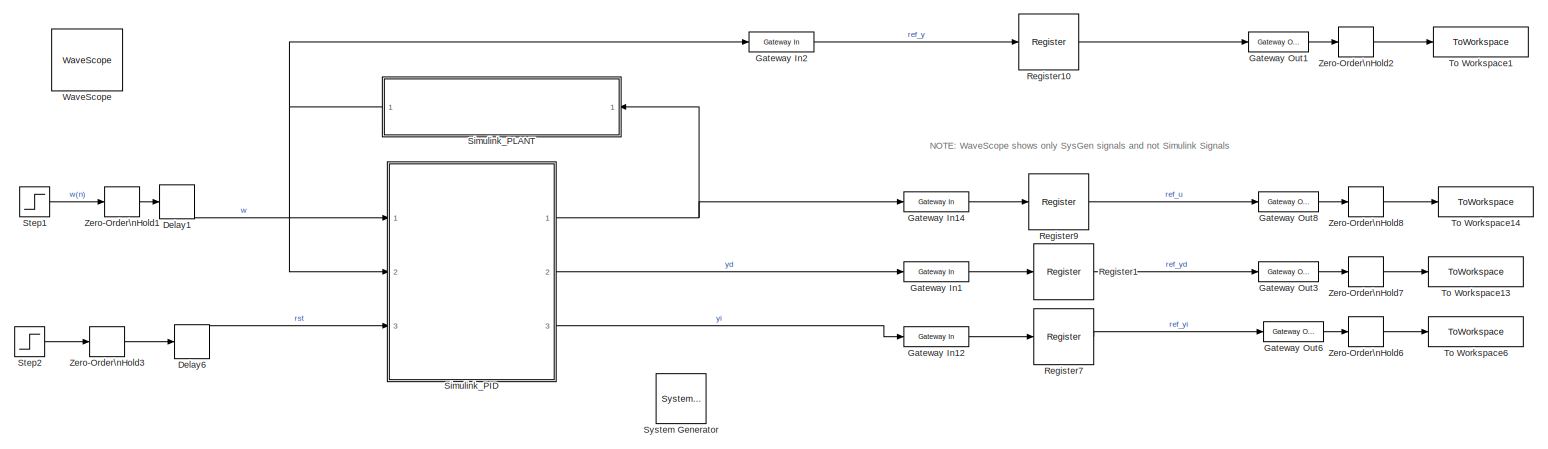
[diagram: root canvas - part 1/4, full width, top band]
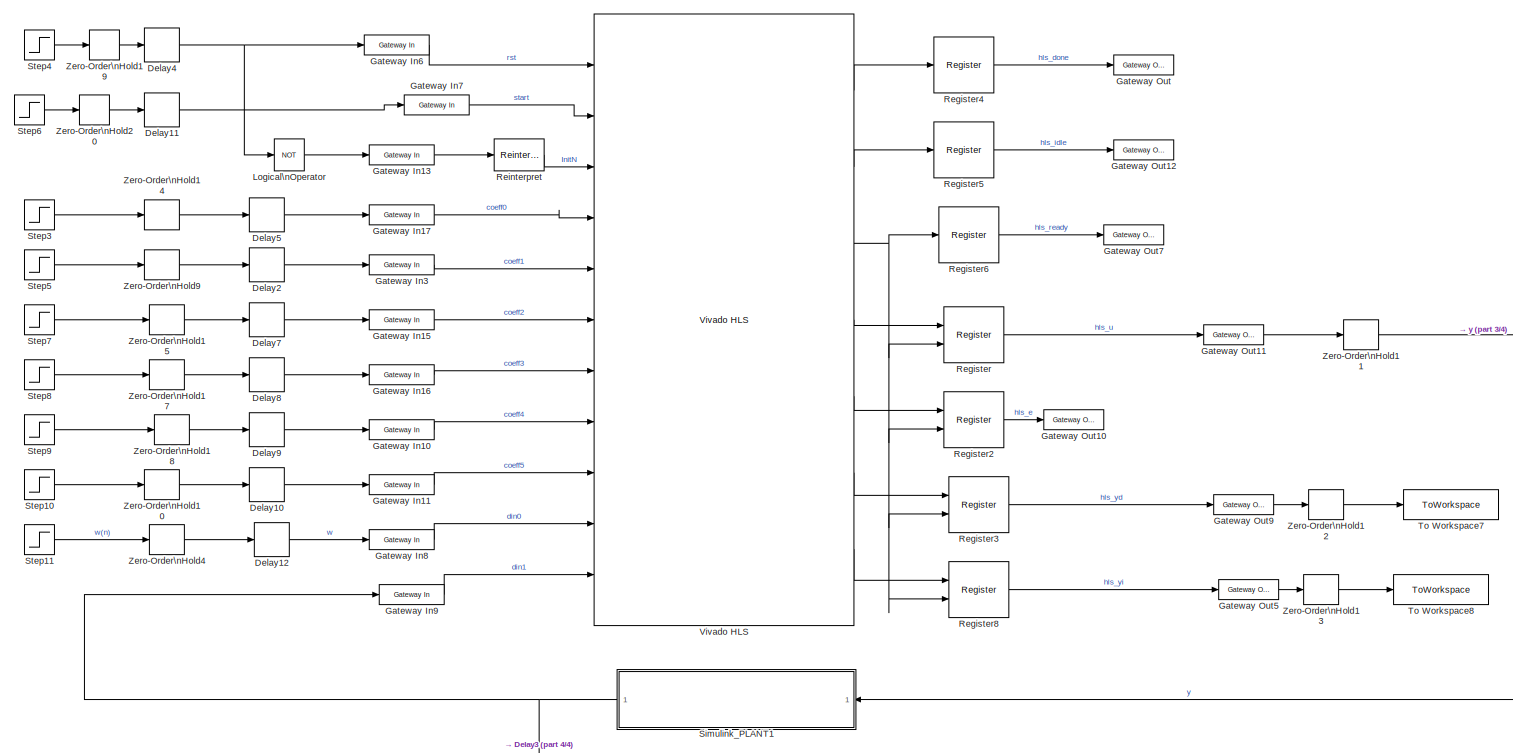
[diagram: root canvas - part 2/4, full width, middle band]
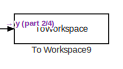
[diagram: root canvas - part 3/4, middle right region]
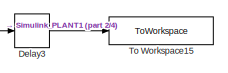
[diagram: root canvas - part 4/4, bottom right region]
MODEL sg_ClosedLoop_PID_float
KIND model
CONFIG StopFcn = sg_ClosedLoop_PID_float_StopFcn
BLOCK [Reference]  System Generator  REF=xbsIndex_r4/ System Generator
  AttributesFormatString = System\\nGenerator
  Impl_file = ISE Defaults
  Ports = []
  SID = 184
  SourceBlock = xbsIndex_r4/ System Generator
  SourceType = Xilinx System Generator Block
  Synth_file = XST Defaults
  Tag = genX
  UserData = DataTag0
  UserDataPersistent = on
  block_type = sysgen
  clock_wrapper = Clock Enables
  core_generation = According to Block Masks
  dbl_ovrd = According to Block Masks
  dcm_input_clock_period = 10
  deprecated_control = off
  directory = ./netlist_top_PID
  eval_field = 0
  has_advanced_control = 0
  incr_netlist = off
  infoedit = System Generator
  package = clg400
  part = xc7z020
  proj_type = Project Navigator
  run_coregen = off
  sg_icon_stat = 50,50,0,0,token,white,0,58c5b5770fe5f7c311f53dbc6e73f0f6,right,,[ ],[ ]
  sg_mask_display = fprintf('','COMMENT: begin icon graphics');\npatch([0 50 50 0 0 ],[0 0 50 50 0 ],[1 1 1 ]);\npatch([1.6375 16.81 27.31 37.81 48.31 27.31 12.1375 1.6375 ],[36.655 36.655 47.155 36.655 47.155 47.155 47.155 36.655 ],[0.933333 0.203922 0.141176 ]);\npatch([12.1375 27.31 16.81 1.6375 12.1375 ],[26.155 26.155 36.655 36.655 26.155 ],[0.698039 0.0313725 0.219608 ]);\npatch([1.6375 16.81 27.31 12.1375 1.63...<+335ch>
  sggui_pos = 326,241,464,470
  simulink_period = 1
  speed = -1
  synthesis_tool = XST
  sysclk_period = 10
  testbench = off
  trim_vbits = Everywhere in SubSystem
  xilinxfamily = zynq
BLOCK [Delay] Delay1
  DelayLength = 11
  ExternalReset = None
  InputPortMap = u0
  Ports = [1, 1]
  SID = 93
BLOCK [Delay] Delay10
  DelayLength = 11
  ExternalReset = None
  InputPortMap = u0
  Ports = [1, 1]
  SID = 113
BLOCK [Delay] Delay11
  DelayLength = 11
  ExternalReset = None
  InputPortMap = u0
  Ports = [1, 1]
  SID = 114
BLOCK [Delay] Delay12
  DelayLength = 11
  ExternalReset = None
  InputPortMap = u0
  Ports = [1, 1]
  SID = 181
BLOCK [Delay] Delay2
  DelayLength = 11
  ExternalReset = None
  InputPortMap = u0
  Ports = [1, 1]
  SID = 112
BLOCK [Delay] Delay3
  DelayLength = 1
  ExternalReset = None
  InputPortMap = u0
  Ports = [1, 1]
  SID = 222
BLOCK [Delay] Delay4
  DelayLength = 1
  ExternalReset = None
  InputPortMap = u0
  Ports = [1, 1]
  SID = 115
BLOCK [Delay] Delay5
  DelayLength = 11
  ExternalReset = None
  InputPortMap = u0
  Ports = [1, 1]
  SID = 116
BLOCK [Delay] Delay6
  DelayLength = 10
  ExternalReset = None
  InputPortMap = u0
  Ports = [1, 1]
  SID = 98
BLOCK [Delay] Delay7
  DelayLength = 11
  ExternalReset = None
  InputPortMap = u0
  Ports = [1, 1]
  SID = 117
BLOCK [Delay] Delay8
  DelayLength = 11
  ExternalReset = None
  InputPortMap = u0
  Ports = [1, 1]
  SID = 118
BLOCK [Delay] Delay9
  DelayLength = 11
  ExternalReset = None
  InputPortMap = u0
  Ports = [1, 1]
  SID = 119
BLOCK [Reference] Gateway In1  REF=xbsIndex_r4/Gateway In
  ADCChannel = '1'
  LOCs = {}
  Ports = [1, 1]
  SID = 185
  SourceBlock = xbsIndex_r4/Gateway In
  SourceType = Xilinx Gateway In Block
  UseAsADC = off
  arith_type = Floating-point
  bin_pt = 25-10
  block_type = gatewayin
  dbl_ovrd = off
  exp_width = 8
  frac_width = 24
  gui_display_data_type = Floating-point
  has_advanced_control = 0
  hdl_port = on
  infoedit = Gateway in block.  Converts inputs of type Simulink integer, single, double and fixed-point to  Xilinx fixed-point or floating-point data type.<br><br>Hardware notes:  In hardware these blocks become top level input ports.  <repeated x15 — deduplicated; at blocks: Gateway In1, Gateway In10, Gateway In11, Gateway In12, Gateway In13, Gateway In14, Gateway In15, Gateway In16, Gateway In17, Gateway In2, Gateway In3, Gateway In6, Gateway In7, Gateway In8, Gateway In9>
  inherit_from_input = off
  locs_specified = off
  n_bits = 25
  overflow = Saturate
  period = II
  preci_type = Single
  quantization = Round  (unbiased: +/- Inf)
  sg_icon_stat = 65,20,1,1,white,yellow,1,00d3666e,right,,[ ],[ ]
  sg_mask_display = fprintf('','COMMENT: begin icon graphics');\npatch([0 65 65 0 0 ],[0 0 20 20 0 ],[0.95 0.93 0.65 ]);\nplot([0 65 65 0 0 ],[0 0 20 20 0 ]);\npatch([27.55 30.44 32.44 34.44 36.44 32.44 29.55 27.55 ],[12.22 12.22 14.22 12.22 14.22 14.22 14.22 12.22 ],[1 1 1 ]);\npatch([29.55 32.44 30.44 27.55 29.55 ],[10.22 10.22 12.22 12.22 10.22 ],[0.985 0.979 0.895 ]);\npatch([27.55 30.44 32.44 29.55 27.55 ],[8.22...<+396ch>  <repeated x15 — deduplicated; at blocks: Gateway In1, Gateway In10, Gateway In11, Gateway In12, Gateway In13, Gateway In14, Gateway In15, Gateway In16, Gateway In17, Gateway In2, Gateway In3, Gateway In6, Gateway In7, Gateway In8, Gateway In9>
  sggui_pos = -1,-1,-1,-1
  timing_constraint = None
  xl_area = [0,0,0,0,0,0,0]
  xl_use_area = off
BLOCK [Reference] Gateway In10  REF=xbsIndex_r4/Gateway In
  ADCChannel = '1'
  LOCs = {}
  Ports = [1, 1]
  SID = 120
  SourceBlock = xbsIndex_r4/Gateway In
  SourceType = Xilinx Gateway In Block
  UseAsADC = off
  arith_type = Floating-point
  bin_pt = 25-10
  block_type = gatewayin
  dbl_ovrd = off
  exp_width = 8
  frac_width = 24
  gui_display_data_type = Floating-point
  has_advanced_control = 0
  hdl_port = on
  inherit_from_input = off
  locs_specified = off
  n_bits = 25
  overflow = Saturate
  period = II
  preci_type = Single
  quantization = Round  (unbiased: +/- Inf)
  sg_icon_stat = 65,20,1,1,white,yellow,1,00d3666e,right,,[ ],[ ]
  sggui_pos = -1,-1,-1,-1
  timing_constraint = None
  xl_area = [0,0,0,0,0,0,0]
  xl_use_area = off
BLOCK [Reference] Gateway In11  REF=xbsIndex_r4/Gateway In
  ADCChannel = '1'
  LOCs = {}
  Ports = [1, 1]
  SID = 121
  SourceBlock = xbsIndex_r4/Gateway In
  SourceType = Xilinx Gateway In Block
  UseAsADC = off
  arith_type = Floating-point
  bin_pt = 25-10
  block_type = gatewayin
  dbl_ovrd = off
  exp_width = 8
  frac_width = 24
  gui_display_data_type = Floating-point
  has_advanced_control = 0
  hdl_port = on
  inherit_from_input = off
  locs_specified = off
  n_bits = 25
  overflow = Saturate
  period = II
  preci_type = Single
  quantization = Round  (unbiased: +/- Inf)
  sg_icon_stat = 65,20,1,1,white,yellow,1,00d3666e,right,,[ ],[ ]
  sggui_pos = -1,-1,-1,-1
  timing_constraint = None
  xl_area = [0,0,0,0,0,0,0]
  xl_use_area = off
BLOCK [Reference] Gateway In12  REF=xbsIndex_r4/Gateway In
  ADCChannel = '1'
  LOCs = {}
  Ports = [1, 1]
  SID = 186
  SourceBlock = xbsIndex_r4/Gateway In
  SourceType = Xilinx Gateway In Block
  UseAsADC = off
  arith_type = Floating-point
  bin_pt = 25-10
  block_type = gatewayin
  dbl_ovrd = off
  exp_width = 8
  frac_width = 24
  gui_display_data_type = Floating-point
  has_advanced_control = 0
  hdl_port = on
  inherit_from_input = off
  locs_specified = off
  n_bits = 25
  overflow = Saturate
  period = II
  preci_type = Single
  quantization = Round  (unbiased: +/- Inf)
  sg_icon_stat = 65,20,1,1,white,yellow,1,00d3666e,right,,[ ],[ ]
  sggui_pos = -1,-1,-1,-1
  timing_constraint = None
  xl_area = [0,0,0,0,0,0,0]
  xl_use_area = off
BLOCK [Reference] Gateway In13  REF=xbsIndex_r4/Gateway In
  ADCChannel = '1'
  LOCs = {}
  Ports = [1, 1]
  SID = 122
  SourceBlock = xbsIndex_r4/Gateway In
  SourceType = Xilinx Gateway In Block
  UseAsADC = off
  arith_type = Boolean
  bin_pt = 25-10
  block_type = gatewayin
  dbl_ovrd = off
  exp_width = 8
  frac_width = 24
  gui_display_data_type = Boolean
  has_advanced_control = 0
  hdl_port = on
  inherit_from_input = off
  locs_specified = off
  n_bits = 25
  overflow = Saturate
  period = II
  preci_type = Single
  quantization = Round  (unbiased: +/- Inf)
  sg_icon_stat = 65,20,1,1,white,yellow,1,00d3666e,right,,[ ],[ ]
  sggui_pos = -1,-1,-1,-1
  timing_constraint = None
  xl_area = [0,0,0,0,0,0,0]
  xl_use_area = off
BLOCK [Reference] Gateway In14  REF=xbsIndex_r4/Gateway In
  ADCChannel = '1'
  LOCs = {}
  Ports = [1, 1]
  SID = 187
  SourceBlock = xbsIndex_r4/Gateway In
  SourceType = Xilinx Gateway In Block
  UseAsADC = off
  arith_type = Floating-point
  bin_pt = 25-10
  block_type = gatewayin
  dbl_ovrd = off
  exp_width = 8
  frac_width = 24
  gui_display_data_type = Floating-point
  has_advanced_control = 0
  hdl_port = on
  inherit_from_input = off
  locs_specified = off
  n_bits = 25
  overflow = Saturate
  period = II
  preci_type = Single
  quantization = Round  (unbiased: +/- Inf)
  sg_icon_stat = 65,20,1,1,white,yellow,1,00d3666e,right,,[ ],[ ]
  sggui_pos = -1,-1,-1,-1
  timing_constraint = None
  xl_area = [0,0,0,0,0,0,0]
  xl_use_area = off
BLOCK [Reference] Gateway In15  REF=xbsIndex_r4/Gateway In
  ADCChannel = '1'
  LOCs = {}
  Ports = [1, 1]
  SID = 123
  SourceBlock = xbsIndex_r4/Gateway In
  SourceType = Xilinx Gateway In Block
  UseAsADC = off
  arith_type = Floating-point
  bin_pt = 25-10
  block_type = gatewayin
  dbl_ovrd = off
  exp_width = 8
  frac_width = 24
  gui_display_data_type = Floating-point
  has_advanced_control = 0
  hdl_port = on
  inherit_from_input = off
  locs_specified = off
  n_bits = 25
  overflow = Saturate
  period = II
  preci_type = Single
  quantization = Round  (unbiased: +/- Inf)
  sg_icon_stat = 65,20,1,1,white,yellow,1,00d3666e,right,,[ ],[ ]
  sggui_pos = -1,-1,-1,-1
  timing_constraint = None
  xl_area = [0,0,0,0,0,0,0]
  xl_use_area = off
BLOCK [Reference] Gateway In16  REF=xbsIndex_r4/Gateway In
  ADCChannel = '1'
  LOCs = {}
  Ports = [1, 1]
  SID = 124
  SourceBlock = xbsIndex_r4/Gateway In
  SourceType = Xilinx Gateway In Block
  UseAsADC = off
  arith_type = Floating-point
  bin_pt = 25-10
  block_type = gatewayin
  dbl_ovrd = off
  exp_width = 8
  frac_width = 24
  gui_display_data_type = Floating-point
  has_advanced_control = 0
  hdl_port = on
  inherit_from_input = off
  locs_specified = off
  n_bits = 25
  overflow = Saturate
  period = II
  preci_type = Single
  quantization = Round  (unbiased: +/- Inf)
  sg_icon_stat = 65,20,1,1,white,yellow,1,00d3666e,right,,[ ],[ ]
  sggui_pos = -1,-1,-1,-1
  timing_constraint = None
  xl_area = [0,0,0,0,0,0,0]
  xl_use_area = off
BLOCK [Reference] Gateway In17  REF=xbsIndex_r4/Gateway In
  ADCChannel = '1'
  LOCs = {}
  Ports = [1, 1]
  SID = 125
  SourceBlock = xbsIndex_r4/Gateway In
  SourceType = Xilinx Gateway In Block
  UseAsADC = off
  arith_type = Floating-point
  bin_pt = 25-10
  block_type = gatewayin
  dbl_ovrd = off
  exp_width = 8
  frac_width = 24
  gui_display_data_type = Floating-point
  has_advanced_control = 0
  hdl_port = on
  inherit_from_input = off
  locs_specified = off
  n_bits = 25
  overflow = Saturate
  period = II
  preci_type = Single
  quantization = Round  (unbiased: +/- Inf)
  sg_icon_stat = 65,20,1,1,white,yellow,1,00d3666e,right,,[ ],[ ]
  sggui_pos = -1,-1,-1,-1
  timing_constraint = None
  xl_area = [0,0,0,0,0,0,0]
  xl_use_area = off
BLOCK [Reference] Gateway In2  REF=xbsIndex_r4/Gateway In
  ADCChannel = '1'
  LOCs = {}
  Ports = [1, 1]
  SID = 217
  SourceBlock = xbsIndex_r4/Gateway In
  SourceType = Xilinx Gateway In Block
  UseAsADC = off
  arith_type = Floating-point
  bin_pt = 25-10
  block_type = gatewayin
  dbl_ovrd = off
  exp_width = 8
  frac_width = 24
  gui_display_data_type = Floating-point
  has_advanced_control = 0
  hdl_port = on
  inherit_from_input = off
  locs_specified = off
  n_bits = 25
  overflow = Saturate
  period = II
  preci_type = Single
  quantization = Round  (unbiased: +/- Inf)
  sg_icon_stat = 65,20,1,1,white,yellow,1,00d3666e,right,,[ ],[ ]
  sggui_pos = -1,-1,-1,-1
  timing_constraint = None
  xl_area = [0,0,0,0,0,0,0]
  xl_use_area = off
BLOCK [Reference] Gateway In3  REF=xbsIndex_r4/Gateway In
  ADCChannel = '1'
  LOCs = {}
  Ports = [1, 1]
  SID = 126
  SourceBlock = xbsIndex_r4/Gateway In
  SourceType = Xilinx Gateway In Block
  UseAsADC = off
  arith_type = Floating-point
  bin_pt = 25-10
  block_type = gatewayin
  dbl_ovrd = off
  exp_width = 8
  frac_width = 24
  gui_display_data_type = Floating-point
  has_advanced_control = 0
  hdl_port = on
  inherit_from_input = off
  locs_specified = off
  n_bits = 25
  overflow = Saturate
  period = II
  preci_type = Single
  quantization = Round  (unbiased: +/- Inf)
  sg_icon_stat = 65,20,1,1,white,yellow,1,00d3666e,right,,[ ],[ ]
  sggui_pos = -1,-1,-1,-1
  timing_constraint = None
  xl_area = [0,0,0,0,0,0,0]
  xl_use_area = off
BLOCK [Reference] Gateway In6  REF=xbsIndex_r4/Gateway In
  ADCChannel = '1'
  LOCs = {}
  Ports = [1, 1]
  SID = 127
  SourceBlock = xbsIndex_r4/Gateway In
  SourceType = Xilinx Gateway In Block
  UseAsADC = off
  arith_type = Boolean
  bin_pt = 25-10
  block_type = gatewayin
  dbl_ovrd = off
  exp_width = 8
  frac_width = 24
  gui_display_data_type = Boolean
  has_advanced_control = 0
  hdl_port = on
  inherit_from_input = off
  locs_specified = off
  n_bits = 25
  overflow = Saturate
  period = II
  preci_type = Single
  quantization = Round  (unbiased: +/- Inf)
  sg_icon_stat = 65,20,1,1,white,yellow,1,00d3666e,right,,[ ],[ ]
  sggui_pos = -1,-1,-1,-1
  timing_constraint = None
  xl_area = [0,0,0,0,0,0,0]
  xl_use_area = off
BLOCK [Reference] Gateway In7  REF=xbsIndex_r4/Gateway In
  ADCChannel = '1'
  LOCs = {}
  Ports = [1, 1]
  SID = 128
  SourceBlock = xbsIndex_r4/Gateway In
  SourceType = Xilinx Gateway In Block
  UseAsADC = off
  arith_type = Boolean
  bin_pt = 25-10
  block_type = gatewayin
  dbl_ovrd = off
  exp_width = 8
  frac_width = 24
  gui_display_data_type = Boolean
  has_advanced_control = 0
  hdl_port = on
  inherit_from_input = off
  locs_specified = off
  n_bits = 25
  overflow = Saturate
  period = II
  preci_type = Single
  quantization = Round  (unbiased: +/- Inf)
  sg_icon_stat = 65,20,1,1,white,yellow,1,00d3666e,right,,[ ],[ ]
  sggui_pos = -1,-1,-1,-1
  timing_constraint = None
  xl_area = [0,0,0,0,0,0,0]
  xl_use_area = off
BLOCK [Reference] Gateway In8  REF=xbsIndex_r4/Gateway In
  ADCChannel = '1'
  LOCs = {}
  Ports = [1, 1]
  SID = 129
  SourceBlock = xbsIndex_r4/Gateway In
  SourceType = Xilinx Gateway In Block
  UseAsADC = off
  arith_type = Floating-point
  bin_pt = 25-10
  block_type = gatewayin
  dbl_ovrd = off
  exp_width = 8
  frac_width = 24
  gui_display_data_type = Floating-point
  has_advanced_control = 0
  hdl_port = on
  inherit_from_input = off
  locs_specified = off
  n_bits = 25
  overflow = Saturate
  period = II
  preci_type = Single
  quantization = Round  (unbiased: +/- Inf)
  sg_icon_stat = 65,20,1,1,white,yellow,1,00d3666e,right,,[ ],[ ]
  sggui_pos = -1,-1,-1,-1
  timing_constraint = None
  xl_area = [0,0,0,0,0,0,0]
  xl_use_area = off
BLOCK [Reference] Gateway In9  REF=xbsIndex_r4/Gateway In
  ADCChannel = '1'
  LOCs = {}
  Ports = [1, 1]
  SID = 130
  SourceBlock = xbsIndex_r4/Gateway In
  SourceType = Xilinx Gateway In Block
  UseAsADC = off
  arith_type = Floating-point
  bin_pt = 25-10
  block_type = gatewayin
  dbl_ovrd = off
  exp_width = 8
  frac_width = 24
  gui_display_data_type = Floating-point
  has_advanced_control = 0
  hdl_port = on
  inherit_from_input = off
  locs_specified = off
  n_bits = 25
  overflow = Saturate
  period = II
  preci_type = Single
  quantization = Round  (unbiased: +/- Inf)
  sg_icon_stat = 65,20,1,1,white,yellow,1,00d3666e,right,,[ ],[ ]
  sggui_pos = 999,154,348,604
  timing_constraint = None
  xl_area = [0,0,0,0,0,0,0]
  xl_use_area = off
BLOCK [Reference] Gateway Out  REF=xbsIndex_r4/Gateway Out
  DACChannel = '1'
  LOCs = {}
  Ports = [1, 1]
  SID = 131
  SourceBlock = xbsIndex_r4/Gateway Out
  SourceType = Xilinx Gateway Out Block
  UseAsDAC = off
  block_type = gatewayout
  has_advanced_control = 0
  hdl_port = off
  infoedit = Gateway out block.  Converts Xilinx fixed-point or floating-point type inputs into ouputs of type Simulink integer, single, double, or fixed-point.<br><br>Hardware notes:  In hardware these blocks become top level output ports or are discarded, depending on how they are configured.  <repeated x11 — deduplicated; at blocks: Gateway Out, Gateway Out1, Gateway Out10, Gateway Out11, Gateway Out12, Gateway Out3, Gateway Out5, Gateway Out6, Gateway Out7, Gateway Out8, Gateway Out9>
  inherit_from_input = off
  locs_specified = off
  sg_icon_stat = 60,20,1,1,white,grey,1,632ec840,right,,[ ],[ ]
  sg_mask_display = fprintf('','COMMENT: begin icon graphics');\npatch([0 60 60 0 0 ],[0 0 20 20 0 ],[0.88 0.88 0.88 ]);\nplot([0 60 60 0 0 ],[0 0 20 20 0 ]);\npatch([25.55 28.44 30.44 32.44 34.44 30.44 27.55 25.55 ],[12.22 12.22 14.22 12.22 14.22 14.22 14.22 12.22 ],[1 1 1 ]);\npatch([27.55 30.44 28.44 25.55 27.55 ],[10.22 10.22 12.22 12.22 10.22 ],[0.964 0.964 0.964 ]);\npatch([25.55 28.44 30.44 27.55 25.55 ],[8.22...<+393ch>  <repeated x9 — deduplicated; at blocks: Gateway Out, Gateway Out1, Gateway Out10, Gateway Out12, Gateway Out3, Gateway Out5, Gateway Out6, Gateway Out8, Gateway Out9>
  sggui_pos = -1,-1,-1,-1
  timing_constraint = None
  xl_area = [0,0,0,0,0,0,0]
  xl_use_area = off
BLOCK [Reference] Gateway Out1  REF=xbsIndex_r4/Gateway Out
  DACChannel = '1'
  LOCs = {}
  Ports = [1, 1]
  SID = 218
  SourceBlock = xbsIndex_r4/Gateway Out
  SourceType = Xilinx Gateway Out Block
  UseAsDAC = off
  block_type = gatewayout
  has_advanced_control = 0
  hdl_port = off
  inherit_from_input = off
  locs_specified = off
  sg_icon_stat = 60,20,1,1,white,grey,1,632ec840,right,,[ ],[ ]
  sggui_pos = -1,-1,-1,-1
  timing_constraint = None
  xl_area = [0,0,0,0,0,0,0]
  xl_use_area = off
BLOCK [Reference] Gateway Out10  REF=xbsIndex_r4/Gateway Out
  DACChannel = '1'
  LOCs = {}
  Ports = [1, 1]
  SID = 132
  SourceBlock = xbsIndex_r4/Gateway Out
  SourceType = Xilinx Gateway Out Block
  UseAsDAC = off
  block_type = gatewayout
  has_advanced_control = 0
  hdl_port = off
  inherit_from_input = off
  locs_specified = off
  sg_icon_stat = 60,20,1,1,white,grey,1,632ec840,right,,[ ],[ ]
  sggui_pos = -1,-1,-1,-1
  timing_constraint = None
  xl_area = [0,0,0,0,0,0,0]
  xl_use_area = off
BLOCK [Reference] Gateway Out11  REF=xbsIndex_r4/Gateway Out
  DACChannel = '1'
  LOCs = {}
  Ports = [1, 1]
  SID = 133
  SourceBlock = xbsIndex_r4/Gateway Out
  SourceType = Xilinx Gateway Out Block
  UseAsDAC = off
  block_type = gatewayout
  has_advanced_control = 0
  hdl_port = on
  inherit_from_input = off
  locs_specified = off
  sg_icon_stat = 60,20,1,1,white,yellow,1,cc31b7ac,right,,[ ],[ ]
  sg_mask_display = fprintf('','COMMENT: begin icon graphics');\npatch([0 60 60 0 0 ],[0 0 20 20 0 ],[0.95 0.93 0.65 ]);\nplot([0 60 60 0 0 ],[0 0 20 20 0 ]);\npatch([25.55 28.44 30.44 32.44 34.44 30.44 27.55 25.55 ],[12.22 12.22 14.22 12.22 14.22 14.22 14.22 12.22 ],[1 1 1 ]);\npatch([27.55 30.44 28.44 25.55 27.55 ],[10.22 10.22 12.22 12.22 10.22 ],[0.985 0.979 0.895 ]);\npatch([25.55 28.44 30.44 27.55 25.55 ],[8.22...<+397ch>
  sggui_pos = -1,-1,-1,-1
  timing_constraint = None
  xl_area = [0,0,0,0,0,0,0]
  xl_use_area = off
BLOCK [Reference] Gateway Out12  REF=xbsIndex_r4/Gateway Out
  DACChannel = '1'
  LOCs = {}
  Ports = [1, 1]
  SID = 134
  SourceBlock = xbsIndex_r4/Gateway Out
  SourceType = Xilinx Gateway Out Block
  UseAsDAC = off
  block_type = gatewayout
  has_advanced_control = 0
  hdl_port = off
  inherit_from_input = off
  locs_specified = off
  sg_icon_stat = 60,20,1,1,white,grey,1,632ec840,right,,[ ],[ ]
  sggui_pos = -1,-1,-1,-1
  timing_constraint = None
  xl_area = [0,0,0,0,0,0,0]
  xl_use_area = off
BLOCK [Reference] Gateway Out3  REF=xbsIndex_r4/Gateway Out
  DACChannel = '1'
  LOCs = {}
  Ports = [1, 1]
  SID = 188
  SourceBlock = xbsIndex_r4/Gateway Out
  SourceType = Xilinx Gateway Out Block
  UseAsDAC = off
  block_type = gatewayout
  has_advanced_control = 0
  hdl_port = off
  inherit_from_input = off
  locs_specified = off
  sg_icon_stat = 60,20,1,1,white,grey,1,632ec840,right,,[ ],[ ]
  sggui_pos = -1,-1,-1,-1
  timing_constraint = None
  xl_area = [0,0,0,0,0,0,0]
  xl_use_area = off
BLOCK [Reference] Gateway Out5  REF=xbsIndex_r4/Gateway Out
  DACChannel = '1'
  LOCs = {}
  Ports = [1, 1]
  SID = 138
  SourceBlock = xbsIndex_r4/Gateway Out
  SourceType = Xilinx Gateway Out Block
  UseAsDAC = off
  block_type = gatewayout
  has_advanced_control = 0
  hdl_port = off
  inherit_from_input = off
  locs_specified = off
  sg_icon_stat = 60,20,1,1,white,grey,1,632ec840,right,,[ ],[ ]
  sggui_pos = -1,-1,-1,-1
  timing_constraint = None
  xl_area = [0,0,0,0,0,0,0]
  xl_use_area = off
BLOCK [Reference] Gateway Out6  REF=xbsIndex_r4/Gateway Out
  DACChannel = '1'
  LOCs = {}
  Ports = [1, 1]
  SID = 189
  SourceBlock = xbsIndex_r4/Gateway Out
  SourceType = Xilinx Gateway Out Block
  UseAsDAC = off
  block_type = gatewayout
  has_advanced_control = 0
  hdl_port = off
  inherit_from_input = off
  locs_specified = off
  sg_icon_stat = 60,20,1,1,white,grey,1,632ec840,right,,[ ],[ ]
  sggui_pos = -1,-1,-1,-1
  timing_constraint = None
  xl_area = [0,0,0,0,0,0,0]
  xl_use_area = off
BLOCK [Reference] Gateway Out7  REF=xbsIndex_r4/Gateway Out
  DACChannel = '1'
  LOCs = {}
  Ports = [1, 1]
  SID = 139
  SourceBlock = xbsIndex_r4/Gateway Out
  SourceType = Xilinx Gateway Out Block
  UseAsDAC = off
  block_type = gatewayout
  has_advanced_control = 0
  hdl_port = on
  inherit_from_input = off
  locs_specified = off
  sg_icon_stat = 60,20,1,1,white,yellow,1,cc31b7ac,right,,[ ],[ ]
  sg_mask_display = fprintf('','COMMENT: begin icon graphics');\npatch([0 60 60 0 0 ],[0 0 20 20 0 ],[0.95 0.93 0.65 ]);\nplot([0 60 60 0 0 ],[0 0 20 20 0 ]);\npatch([25.55 28.44 30.44 32.44 34.44 30.44 27.55 25.55 ],[12.22 12.22 14.22 12.22 14.22 14.22 14.22 12.22 ],[1 1 1 ]);\npatch([27.55 30.44 28.44 25.55 27.55 ],[10.22 10.22 12.22 12.22 10.22 ],[0.985 0.979 0.895 ]);\npatch([25.55 28.44 30.44 27.55 25.55 ],[8.22...<+397ch>
  sggui_pos = -1,-1,-1,-1
  timing_constraint = None
  xl_area = [0,0,0,0,0,0,0]
  xl_use_area = off
BLOCK [Reference] Gateway Out8  REF=xbsIndex_r4/Gateway Out
  DACChannel = '1'
  LOCs = {}
  Ports = [1, 1]
  SID = 190
  SourceBlock = xbsIndex_r4/Gateway Out
  SourceType = Xilinx Gateway Out Block
  UseAsDAC = off
  block_type = gatewayout
  has_advanced_control = 0
  hdl_port = off
  inherit_from_input = off
  locs_specified = off
  sg_icon_stat = 60,20,1,1,white,grey,1,632ec840,right,,[ ],[ ]
  sggui_pos = -1,-1,-1,-1
  timing_constraint = None
  xl_area = [0,0,0,0,0,0,0]
  xl_use_area = off
BLOCK [Reference] Gateway Out9  REF=xbsIndex_r4/Gateway Out
  DACChannel = '1'
  LOCs = {}
  Ports = [1, 1]
  SID = 140
  SourceBlock = xbsIndex_r4/Gateway Out
  SourceType = Xilinx Gateway Out Block
  UseAsDAC = off
  block_type = gatewayout
  has_advanced_control = 0
  hdl_port = off
  inherit_from_input = off
  locs_specified = off
  sg_icon_stat = 60,20,1,1,white,grey,1,632ec840,right,,[ ],[ ]
  sggui_pos = -1,-1,-1,-1
  timing_constraint = None
  xl_area = [0,0,0,0,0,0,0]
  xl_use_area = off
BLOCK [Logic] Logical\nOperator
  AllPortsSameDT = off
  Operator = NOT
  OutDataTypeStr = boolean
  Ports = [1, 1]
  SID = 141
BLOCK [Reference] Register  REF=xbsIndex_r4/Register
  Ports = [2, 1]
  SID = 142
  SourceBlock = xbsIndex_r4/Register
  SourceType = Xilinx Register Block
  block_type = register
  dbl_ovrd = off
  en = on
  has_advanced_control = 0
  init = 0
  rst = off
  sg_icon_stat = 60,56,2,1,white,blue,0,6bd0930c,right,,[ ],[ ]
  sg_mask_display = fprintf('','COMMENT: begin icon graphics');\npatch([0 60 60 0 0 ],[0 0 56 56 0 ],[0.77 0.82 0.91 ]);\nplot([0 60 60 0 0 ],[0 0 56 56 0 ]);\npatch([12.2 23.76 31.76 39.76 47.76 31.76 20.2 12.2 ],[36.88 36.88 44.88 36.88 44.88 44.88 44.88 36.88 ],[1 1 1 ]);\npatch([20.2 31.76 23.76 12.2 20.2 ],[28.88 28.88 36.88 36.88 28.88 ],[0.931 0.946 0.973 ]);\npatch([12.2 23.76 31.76 20.2 12.2 ],[20.88 20.88 2...<+447ch>  <repeated x4 — deduplicated; at blocks: Register, Register2, Register3, Register8>
  sggui_pos = -1,-1,-1,-1
  xl_area = [0,0,0,0,0,0,0]
  xl_use_area = off
BLOCK [Reference] Register1  REF=xbsIndex_r4/Register
  Ports = [1, 1]
  SID = 191
  SourceBlock = xbsIndex_r4/Register
  SourceType = Xilinx Register Block
  block_type = register
  dbl_ovrd = off
  en = off
  has_advanced_control = 0
  init = 0
  rst = off
  sg_icon_stat = 60,56,1,1,white,blue,0,c80657c5,right,,[ ],[ ]
  sg_mask_display = fprintf('','COMMENT: begin icon graphics');\npatch([0 60 60 0 0 ],[0 0 56 56 0 ],[0.77 0.82 0.91 ]);\nplot([0 60 60 0 0 ],[0 0 56 56 0 ]);\npatch([12.2 23.76 31.76 39.76 47.76 31.76 20.2 12.2 ],[36.88 36.88 44.88 36.88 44.88 44.88 44.88 36.88 ],[1 1 1 ]);\npatch([20.2 31.76 23.76 12.2 20.2 ],[28.88 28.88 36.88 36.88 28.88 ],[0.931 0.946 0.973 ]);\npatch([12.2 23.76 31.76 20.2 12.2 ],[20.88 20.88 2...<+403ch>  <repeated x7 — deduplicated; at blocks: Register1, Register10, Register4, Register5, Register6, Register7, Register9>
  sggui_pos = -1,-1,-1,-1
  xl_area = [0,0,0,0,0,0,0]
  xl_use_area = off
BLOCK [Reference] Register10  REF=xbsIndex_r4/Register
  Ports = [1, 1]
  SID = 219
  SourceBlock = xbsIndex_r4/Register
  SourceType = Xilinx Register Block
  block_type = register
  dbl_ovrd = off
  en = off
  has_advanced_control = 0
  init = 0
  rst = off
  sg_icon_stat = 60,56,1,1,white,blue,0,c80657c5,right,,[ ],[ ]
  sggui_pos = -1,-1,-1,-1
  xl_area = [0,0,0,0,0,0,0]
  xl_use_area = off
BLOCK [Reference] Register2  REF=xbsIndex_r4/Register
  Ports = [2, 1]
  SID = 143
  SourceBlock = xbsIndex_r4/Register
  SourceType = Xilinx Register Block
  block_type = register
  dbl_ovrd = off
  en = on
  has_advanced_control = 0
  init = 0
  rst = off
  sg_icon_stat = 60,56,2,1,white,blue,0,6bd0930c,right,,[ ],[ ]
  sggui_pos = -1,-1,-1,-1
  xl_area = [0,0,0,0,0,0,0]
  xl_use_area = off
BLOCK [Reference] Register3  REF=xbsIndex_r4/Register
  Ports = [2, 1]
  SID = 144
  SourceBlock = xbsIndex_r4/Register
  SourceType = Xilinx Register Block
  block_type = register
  dbl_ovrd = off
  en = on
  has_advanced_control = 0
  init = 0
  rst = off
  sg_icon_stat = 60,56,2,1,white,blue,0,6bd0930c,right,,[ ],[ ]
  sggui_pos = -1,-1,-1,-1
  xl_area = [0,0,0,0,0,0,0]
  xl_use_area = off
BLOCK [Reference] Register4  REF=xbsIndex_r4/Register
  Ports = [1, 1]
  SID = 145
  SourceBlock = xbsIndex_r4/Register
  SourceType = Xilinx Register Block
  block_type = register
  dbl_ovrd = off
  en = off
  has_advanced_control = 0
  init = 0
  rst = off
  sg_icon_stat = 60,56,1,1,white,blue,0,c80657c5,right,,[ ],[ ]
  sggui_pos = -1,-1,-1,-1
  xl_area = [0,0,0,0,0,0,0]
  xl_use_area = off
BLOCK [Reference] Register5  REF=xbsIndex_r4/Register
  Ports = [1, 1]
  SID = 146
  SourceBlock = xbsIndex_r4/Register
  SourceType = Xilinx Register Block
  block_type = register
  dbl_ovrd = off
  en = off
  has_advanced_control = 0
  init = 0
  rst = off
  sg_icon_stat = 60,56,1,1,white,blue,0,c80657c5,right,,[ ],[ ]
  sggui_pos = -1,-1,-1,-1
  xl_area = [0,0,0,0,0,0,0]
  xl_use_area = off
BLOCK [Reference] Register6  REF=xbsIndex_r4/Register
  Ports = [1, 1]
  SID = 147
  SourceBlock = xbsIndex_r4/Register
  SourceType = Xilinx Register Block
  block_type = register
  dbl_ovrd = off
  en = off
  has_advanced_control = 0
  init = 0
  rst = off
  sg_icon_stat = 60,56,1,1,white,blue,0,c80657c5,right,,[ ],[ ]
  sggui_pos = -1,-1,-1,-1
  xl_area = [0,0,0,0,0,0,0]
  xl_use_area = off
BLOCK [Reference] Register7  REF=xbsIndex_r4/Register
  Ports = [1, 1]
  SID = 192
  SourceBlock = xbsIndex_r4/Register
  SourceType = Xilinx Register Block
  block_type = register
  dbl_ovrd = off
  en = off
  has_advanced_control = 0
  init = 0
  rst = off
  sg_icon_stat = 60,56,1,1,white,blue,0,c80657c5,right,,[ ],[ ]
  sggui_pos = -1,-1,-1,-1
  xl_area = [0,0,0,0,0,0,0]
  xl_use_area = off
BLOCK [Reference] Register8  REF=xbsIndex_r4/Register
  Ports = [2, 1]
  SID = 148
  SourceBlock = xbsIndex_r4/Register
  SourceType = Xilinx Register Block
  block_type = register
  dbl_ovrd = off
  en = on
  has_advanced_control = 0
  init = 0
  rst = off
  sg_icon_stat = 60,56,2,1,white,blue,0,6bd0930c,right,,[ ],[ ]
  sggui_pos = -1,-1,-1,-1
  xl_area = [0,0,0,0,0,0,0]
  xl_use_area = off
BLOCK [Reference] Register9  REF=xbsIndex_r4/Register
  Ports = [1, 1]
  SID = 193
  SourceBlock = xbsIndex_r4/Register
  SourceType = Xilinx Register Block
  block_type = register
  dbl_ovrd = off
  en = off
  has_advanced_control = 0
  init = 0
  rst = off
  sg_icon_stat = 60,56,1,1,white,blue,0,c80657c5,right,,[ ],[ ]
  sggui_pos = -1,-1,-1,-1
  xl_area = [0,0,0,0,0,0,0]
  xl_use_area = off
BLOCK [Reference] Reinterpret  REF=xbsIndex_r4/Reinterpret
  Ports = [1, 1]
  SID = 149
  SourceBlock = xbsIndex_r4/Reinterpret
  SourceType = Xilinx Type Reinterpreter Block
  arith_type = Unsigned
  bin_pt = 0
  block_type = reinterpret
  force_arith_type = on
  force_bin_pt = on
  has_advanced_control = 0
  infoedit = Changes signal type without altering the binary representation.   You can change the signal between signed and unsigned, and relocate the binary point.<br><br>Hardware notes: In hardware this block costs nothing.<br><br>Example:  Suppose the input is 6 bits wide, signed, with 2 fractional bits, and the output is forced to unsigned with 0 fractional bits.  Then an input of -2.0 (1110.00 in binary 2...<+58ch>
  sg_icon_stat = 50,32,1,1,white,blue,0,6b04d0b0,right,,[ ],[ ]
  sg_mask_display = fprintf('','COMMENT: begin icon graphics');\npatch([0 50 50 0 0 ],[0 0 32 32 0 ],[0.77 0.82 0.91 ]);\nplot([0 50 50 0 0 ],[0 0 32 32 0 ]);\npatch([16.1 21.88 25.88 29.88 33.88 25.88 20.1 16.1 ],[20.44 20.44 24.44 20.44 24.44 24.44 24.44 20.44 ],[1 1 1 ]);\npatch([20.1 25.88 21.88 16.1 20.1 ],[16.44 16.44 20.44 20.44 16.44 ],[0.931 0.946 0.973 ]);\npatch([16.1 21.88 25.88 20.1 16.1 ],[12.44 12.44 1...<+306ch>
  sggui_pos = -1,-1,-1,-1
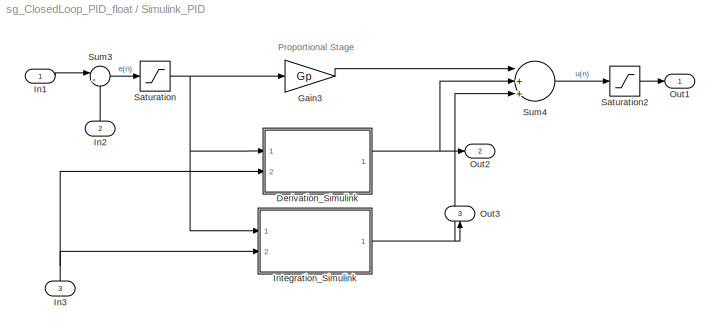
BLOCK [SubSystem] Simulink_PID
  FunctionWithSeparateData = off
  MaskHideContents = off
  MinAlgLoopOccurrences = off
  Opaque = off
  Ports = [3, 3]
  PropExecContextOutsideSubsystem = off
  RTWSystemCode = Auto
  RequestExecContextInheritance = off
  SID = 57
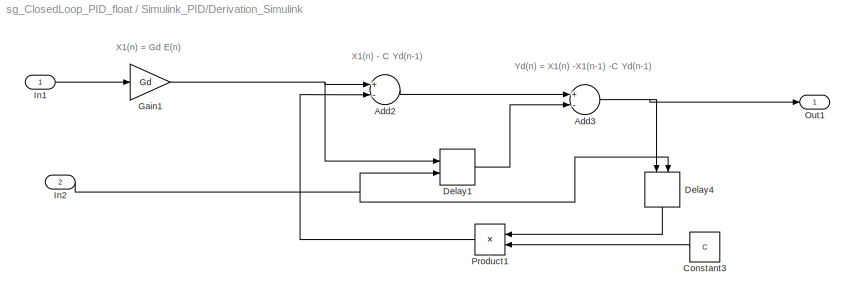
BLOCK [SubSystem] Simulink_PID/Derivation_Simulink
  FunctionWithSeparateData = off
  MaskHideContents = off
  MinAlgLoopOccurrences = off
  Opaque = off
  Ports = [2, 1]
  PropExecContextOutsideSubsystem = off
  RTWSystemCode = Auto
  RequestExecContextInheritance = off
  SID = 61
BLOCK [Sum] Simulink_PID/Derivation_Simulink/Add2
  InputSameDT = off
  Inputs = +-
  OutDataTypeStr = Inherit: Inherit via internal rule
  Ports = [2, 1]
  SID = 64
  SaturateOnIntegerOverflow = off
BLOCK [Sum] Simulink_PID/Derivation_Simulink/Add3
  InputSameDT = off
  Inputs = +-
  OutDataTypeStr = Inherit: Inherit via internal rule
  Ports = [2, 1]
  SID = 65
  SaturateOnIntegerOverflow = off
BLOCK [Constant] Simulink_PID/Derivation_Simulink/Constant3
  OutDataTypeStr = single
  SID = 66
  SampleTime = II
  Value = C
BLOCK [Delay] Simulink_PID/Derivation_Simulink/Delay1
  DelayLength = 1
  ExternalReset = Level hold
  InputPortMap = u0,r5
  Ports = [2, 1]
  SID = 67
BLOCK [Delay] Simulink_PID/Derivation_Simulink/Delay4
  DelayLength = 1
  ExternalReset = Level hold
  InputPortMap = u0,r5
  Ports = [2, 1]
  SID = 68
BLOCK [Gain] Simulink_PID/Derivation_Simulink/Gain1
  Gain = Gd
  OutDataTypeStr = Inherit: Inherit via internal rule
  ParamDataTypeStr = Inherit: Inherit via internal rule
  SID = 69
  SaturateOnIntegerOverflow = off
BLOCK [Inport] Simulink_PID/Derivation_Simulink/In1
  IconDisplay = Port number
  SID = 62
BLOCK [Inport] Simulink_PID/Derivation_Simulink/In2
  IconDisplay = Port number
  Port = 2
  SID = 63
BLOCK [Outport] Simulink_PID/Derivation_Simulink/Out1
  IconDisplay = Port number
  SID = 71
BLOCK [Product] Simulink_PID/Derivation_Simulink/Product1
  InputSameDT = off
  OutDataTypeStr = Inherit: Inherit via internal rule
  Ports = [2, 1]
  SID = 70
  SaturateOnIntegerOverflow = off
BLOCK [Gain] Simulink_PID/Gain3
  Gain = Gp
  OutDataTypeStr = Inherit: Inherit via internal rule
  ParamDataTypeStr = Inherit: Inherit via internal rule
  SID = 72
  SaturateOnIntegerOverflow = off
BLOCK [Inport] Simulink_PID/In1
  IconDisplay = Port number
  SID = 58
BLOCK [Inport] Simulink_PID/In2
  IconDisplay = Port number
  Port = 2
  SID = 59
BLOCK [Inport] Simulink_PID/In3
  IconDisplay = Port number
  Port = 3
  SID = 60
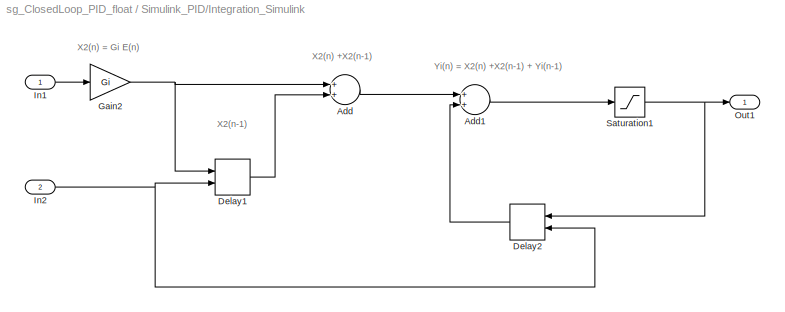
BLOCK [SubSystem] Simulink_PID/Integration_Simulink
  FunctionWithSeparateData = off
  MaskHideContents = off
  MinAlgLoopOccurrences = off
  Opaque = off
  Ports = [2, 1]
  PropExecContextOutsideSubsystem = off
  RTWSystemCode = Auto
  RequestExecContextInheritance = off
  SID = 73
BLOCK [Sum] Simulink_PID/Integration_Simulink/Add
  InputSameDT = off
  OutDataTypeStr = Inherit: Inherit via internal rule
  Ports = [2, 1]
  SID = 76
  SaturateOnIntegerOverflow = off
BLOCK [Sum] Simulink_PID/Integration_Simulink/Add1
  InputSameDT = off
  OutDataTypeStr = Inherit: Inherit via internal rule
  Ports = [2, 1]
  SID = 77
  SaturateOnIntegerOverflow = off
BLOCK [Delay] Simulink_PID/Integration_Simulink/Delay1
  DelayLength = 1
  ExternalReset = Level hold
  InputPortMap = u0,r5
  Ports = [2, 1]
  SID = 78
BLOCK [Delay] Simulink_PID/Integration_Simulink/Delay2
  DelayLength = 1
  ExternalReset = Level hold
  InputPortMap = u0,r5
  Ports = [2, 1]
  SID = 79
BLOCK [Gain] Simulink_PID/Integration_Simulink/Gain2
  Gain = Gi
  OutDataTypeStr = Inherit: Inherit via internal rule
  ParamDataTypeStr = Inherit: Inherit via internal rule
  SID = 80
  SaturateOnIntegerOverflow = off
BLOCK [Inport] Simulink_PID/Integration_Simulink/In1
  IconDisplay = Port number
  SID = 74
BLOCK [Inport] Simulink_PID/Integration_Simulink/In2
  IconDisplay = Port number
  Port = 2
  SID = 75
BLOCK [Outport] Simulink_PID/Integration_Simulink/Out1
  IconDisplay = Port number
  SID = 82
BLOCK [Saturate] Simulink_PID/Integration_Simulink/Saturation1
  InputPortMap = u0
  LowerLimit = min_clip
  Ports = [1, 1]
  SID = 81
  UpperLimit = max_clip
BLOCK [Outport] Simulink_PID/Out1
  IconDisplay = Port number
  SID = 87
BLOCK [Outport] Simulink_PID/Out2
  IconDisplay = Port number
  Port = 2
  SID = 88
BLOCK [Outport] Simulink_PID/Out3
  IconDisplay = Port number
  Port = 3
  SID = 89
BLOCK [Saturate] Simulink_PID/Saturation
  InputPortMap = u0
  LowerLimit = min_clip
  Ports = [1, 1]
  SID = 83
  UpperLimit = max_clip
BLOCK [Saturate] Simulink_PID/Saturation2
  InputPortMap = u0
  LowerLimit = min_clip
  Ports = [1, 1]
  SID = 84
  UpperLimit = max_clip
BLOCK [Sum] Simulink_PID/Sum3
  IconShape = round
  InputSameDT = off
  Inputs = |+-
  OutDataTypeStr = Inherit: Inherit via internal rule
  Ports = [2, 1]
  SID = 85
  SaturateOnIntegerOverflow = off
BLOCK [Sum] Simulink_PID/Sum4
  InputSameDT = off
  Inputs = |+++
  OutDataTypeStr = Inherit: Inherit via internal rule
  Ports = [3, 1]
  SID = 86
  SaturateOnIntegerOverflow = off
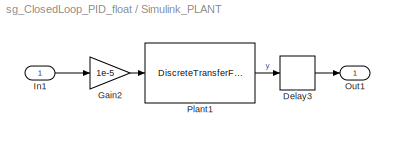
BLOCK [SubSystem] Simulink_PLANT
  FunctionWithSeparateData = off
  MaskHideContents = off
  MinAlgLoopOccurrences = off
  Opaque = off
  Ports = [1, 1]
  PropExecContextOutsideSubsystem = off
  RTWSystemCode = Auto
  RequestExecContextInheritance = off
  SID = 207
BLOCK [Delay] Simulink_PLANT/Delay3
  DelayLength = 1
  ExternalReset = None
  InputPortMap = u0
  Ports = [1, 1]
  SID = 206
BLOCK [Gain] Simulink_PLANT/Gain2
  Gain = 1e-5
  OutDataTypeStr = Inherit: Inherit via internal rule
  ParamDataTypeStr = Inherit: Inherit via internal rule
  SID = 90
  SaturateOnIntegerOverflow = off
BLOCK [Inport] Simulink_PLANT/In1
  IconDisplay = Port number
  SID = 209
BLOCK [Outport] Simulink_PLANT/Out1
  IconDisplay = Port number
  SID = 208
BLOCK [DiscreteTransferFcn] Simulink_PLANT/Plant1
  Denominator = [1 -1.903 0.9048]
  Numerator = [2.38 4.76 2.38]
  SID = 91
  SampleTime = II
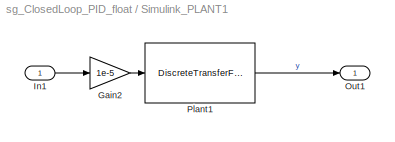
BLOCK [SubSystem] Simulink_PLANT1
  FunctionWithSeparateData = off
  MaskHideContents = off
  MinAlgLoopOccurrences = off
  Opaque = off
  Ports = [1, 1]
  PropExecContextOutsideSubsystem = off
  RTWSystemCode = Auto
  RequestExecContextInheritance = off
  SID = 210
BLOCK [Gain] Simulink_PLANT1/Gain2
  Gain = 1e-5
  OutDataTypeStr = Inherit: Inherit via internal rule
  ParamDataTypeStr = Inherit: Inherit via internal rule
  SID = 213
  SaturateOnIntegerOverflow = off
BLOCK [Inport] Simulink_PLANT1/In1
  IconDisplay = Port number
  SID = 211
BLOCK [Outport] Simulink_PLANT1/Out1
  IconDisplay = Port number
  SID = 215
BLOCK [DiscreteTransferFcn] Simulink_PLANT1/Plant1
  Denominator = [1 -1.903 0.9048]
  Numerator = [2.38 4.76 2.38]
  SID = 214
  SampleTime = II
BLOCK [Step] Step1
  After = 10
  SID = 94
  SampleTime = II
BLOCK [Step] Step10
  After = min_clip
  SID = 157
  SampleTime = II
BLOCK [Step] Step11
  After = 10
  SID = 182
  SampleTime = II
BLOCK [Step] Step2
  After = 0
  Before = 1
  SID = 99
  SampleTime = II
BLOCK [Step] Step3
  After = Gi
  SID = 150
  SampleTime = II
BLOCK [Step] Step4
  After = 0
  Before = 1
  SID = 151
  SampleTime = II
BLOCK [Step] Step5
  After = Gd
  SID = 152
  SampleTime = II
BLOCK [Step] Step6
  SID = 153
  SampleTime = II
BLOCK [Step] Step7
  After = C
  SID = 154
  SampleTime = II
BLOCK [Step] Step8
  After = Gp
  SID = 155
  SampleTime = II
BLOCK [Step] Step9
  After = max_clip
  SID = 156
  SampleTime = II
BLOCK [ToWorkspace] To Workspace1
  MaxDataPoints = inf
  Ports = [1]
  SID = 220
  SampleTime = -1
  SaveFormat = Array
  VariableName = simout_ref_y
BLOCK [ToWorkspace] To Workspace13
  MaxDataPoints = inf
  Ports = [1]
  SID = 195
  SampleTime = -1
  SaveFormat = Array
  VariableName = simout_ref_yd
BLOCK [ToWorkspace] To Workspace14
  MaxDataPoints = inf
  Ports = [1]
  SID = 196
  SampleTime = -1
  SaveFormat = Array
  VariableName = simout_ref_u
BLOCK [ToWorkspace] To Workspace15
  MaxDataPoints = inf
  Ports = [1]
  SID = 201
  SampleTime = -1
  SaveFormat = Array
  VariableName = simout_hls_y
BLOCK [ToWorkspace] To Workspace6
  MaxDataPoints = inf
  Ports = [1]
  SID = 194
  SampleTime = -1
  SaveFormat = Array
  VariableName = simout_ref_yi
BLOCK [ToWorkspace] To Workspace7
  MaxDataPoints = inf
  Ports = [1]
  SID = 161
  SampleTime = -1
  SaveFormat = Array
  VariableName = simout_hls_yd
BLOCK [ToWorkspace] To Workspace8
  MaxDataPoints = inf
  Ports = [1]
  SID = 162
  SampleTime = -1
  SaveFormat = Array
  VariableName = simout_hls_yi
BLOCK [ToWorkspace] To Workspace9
  MaxDataPoints = inf
  Ports = [1]
  SID = 163
  SampleTime = -1
  SaveFormat = Array
  VariableName = simout_hls_u
BLOCK [Reference] Vivado HLS  REF=xbsIndex_r4/Vivado HLS
  Ports = [11, 7]
  SID = 164
  SourceBlock = xbsIndex_r4/Vivado HLS
  SourceType = Xilinx High Level Synthesis Block
  anytable = '<path>'
  block_type = hls
  display_datatype = off
  has_advanced_control = 0
  infoedit = This block allows including C,C++ and SystemC source files in System Generator for DSP designs.
  latency = 1
  model_file_path = ''
  rate_propagation_method = Simulink system period
  sg_icon_stat = 260,612,11,7,white,blue,0,5db207d1,right,,[ ],[ ]
  sg_mask_display = fprintf('','COMMENT: begin icon graphics');\npatch([0 260 260 0 0 ],[0 0 612 612 0 ],[0.77 0.82 0.91 ]);\nplot([0 260 260 0 0 ],[0 0 612 612 0 ]);\npatch([47.675 101.14 138.14 175.14 212.14 138.14 84.675 47.675 ],[347.07 347.07 384.07 347.07 384.07 384.07 384.07 347.07 ],[1 1 1 ]);\npatch([84.675 138.14 101.14 47.675 84.675 ],[310.07 310.07 347.07 347.07 310.07 ],[0.931 0.946 0.973 ]);\npatch([47....<+1263ch>
  sggui_pos = 597,497,380,260
BLOCK [Reference] WaveScope  REF=xbsIndex_r4/WaveScope
  Ports = []
  SID = 200
  SourceBlock = xbsIndex_r4/WaveScope
  SourceType = Xilinx WaveScope Block
  UserData = DataTag1
  UserDataPersistent = on
  block_type = wavescope
  has_advanced_control = 0
  infoedit = WaveScope
  sg_icon_stat = 71,62,-1,-1,blue,white,0,07734,right,,[ ],[ ]
  sg_mask_display = fprintf('','COMMENT: begin icon graphics');\npatch([0 71 71 0 0 ],[0 0 62 62 0 ],[1 1 1 ]);\nplot([0 71 71 0 0 ],[0 0 62 62 0 ]);\npatch([17.2 28.76 36.76 44.76 52.76 36.76 25.2 17.2 ],[39.88 39.88 47.88 39.88 47.88 47.88 47.88 39.88 ],[0.839 0.874 0.937 ]);\npatch([25.2 36.76 28.76 17.2 25.2 ],[31.88 31.88 39.88 39.88 31.88 ],[0.77 0.82 0.91 ]);\npatch([17.2 28.76 36.76 25.2 17.2 ],[23.88 23.88 3...<+554ch>
  sggui_pos = -1,-1,-1,-1
BLOCK [ZeroOrderHold] Zero-Order\nHold1
  SID = 95
  SampleTime = II
BLOCK [ZeroOrderHold] Zero-Order\nHold10
  SID = 165
  SampleTime = -1
BLOCK [ZeroOrderHold] Zero-Order\nHold11
  SID = 166
  SampleTime = II
BLOCK [ZeroOrderHold] Zero-Order\nHold12
  SID = 167
  SampleTime = II
BLOCK [ZeroOrderHold] Zero-Order\nHold13
  SID = 168
  SampleTime = II
BLOCK [ZeroOrderHold] Zero-Order\nHold14
  SID = 169
  SampleTime = -1
BLOCK [ZeroOrderHold] Zero-Order\nHold15
  SID = 170
  SampleTime = -1
BLOCK [ZeroOrderHold] Zero-Order\nHold17
  SID = 171
  SampleTime = -1
BLOCK [ZeroOrderHold] Zero-Order\nHold18
  SID = 172
  SampleTime = -1
BLOCK [ZeroOrderHold] Zero-Order\nHold19
  SID = 173
  SampleTime = II
BLOCK [ZeroOrderHold] Zero-Order\nHold2
  SID = 221
  SampleTime = II
BLOCK [ZeroOrderHold] Zero-Order\nHold20
  SID = 174
  SampleTime = II
BLOCK [ZeroOrderHold] Zero-Order\nHold3
  SID = 100
  SampleTime = II
BLOCK [ZeroOrderHold] Zero-Order\nHold4
  SID = 183
  SampleTime = II
BLOCK [ZeroOrderHold] Zero-Order\nHold6
  SID = 197
  SampleTime = II
BLOCK [ZeroOrderHold] Zero-Order\nHold7
  SID = 198
  SampleTime = II
BLOCK [ZeroOrderHold] Zero-Order\nHold8
  SID = 199
  SampleTime = II
BLOCK [ZeroOrderHold] Zero-Order\nHold9
  SID = 178
  SampleTime = -1
ANNOTATION (root): NOTE: WaveScope shows only SysGen signals and not Simulink Signals
ANNOTATION Simulink_PID: Proportional Stage
ANNOTATION Simulink_PID/Derivation_Simulink: X1(n) - C Yd(n-1)
ANNOTATION Simulink_PID/Derivation_Simulink: X1(n) = Gd E(n)
ANNOTATION Simulink_PID/Derivation_Simulink: Yd(n) = X1(n) -X1(n-1) -C Yd(n-1)
ANNOTATION Simulink_PID/Integration_Simulink: X2(n) +X2(n-1)
ANNOTATION Simulink_PID/Integration_Simulink: X2(n) = Gi E(n)
ANNOTATION Simulink_PID/Integration_Simulink: X2(n-1)
ANNOTATION Simulink_PID/Integration_Simulink: Yi(n) = X2(n) +X2(n-1) + Yi(n-1)
LINE Delay10:1 -> Gateway In11:1
LINE Delay11:1 -> Gateway In7:1
LINE Delay12:1 -> Gateway In8:1
LINE Delay1:1 -> Simulink_PID:1
LINE Delay2:1 -> Gateway In3:1
LINE Delay3:1 -> To Workspace15:1
NET Delay4:1 -> Gateway In6:1, Logical\nOperator:1
LINE Delay5:1 -> Gateway In17:1
LINE Delay6:1 -> Simulink_PID:3
LINE Delay7:1 -> Gateway In15:1
LINE Delay8:1 -> Gateway In16:1
LINE Delay9:1 -> Gateway In10:1
LINE Gateway In10:1 -> Vivado HLS:8
LINE Gateway In11:1 -> Vivado HLS:9
LINE Gateway In12:1 -> Register7:1
LINE Gateway In13:1 -> Reinterpret:1
LINE Gateway In14:1 -> Register9:1
LINE Gateway In15:1 -> Vivado HLS:6
LINE Gateway In16:1 -> Vivado HLS:7
LINE Gateway In17:1 -> Vivado HLS:4
LINE Gateway In1:1 -> Register1:1
LINE Gateway In2:1 -> Register10:1
LINE Gateway In3:1 -> Vivado HLS:5
LINE Gateway In6:1 -> Vivado HLS:1
LINE Gateway In7:1 -> Vivado HLS:2
LINE Gateway In8:1 -> Vivado HLS:10
LINE Gateway In9:1 -> Vivado HLS:11
LINE Gateway Out11:1 -> Zero-Order\nHold11:1
LINE Gateway Out1:1 -> Zero-Order\nHold2:1
LINE Gateway Out3:1 -> Zero-Order\nHold7:1
LINE Gateway Out5:1 -> Zero-Order\nHold13:1
LINE Gateway Out6:1 -> Zero-Order\nHold6:1
LINE Gateway Out8:1 -> Zero-Order\nHold8:1
LINE Gateway Out9:1 -> Zero-Order\nHold12:1
LINE Logical\nOperator:1 -> Gateway In13:1
LINE Register10:1 -> Gateway Out1:1
LINE Register1:1 -> Gateway Out3:1
LINE Register2:1 -> Gateway Out10:1
LINE Register3:1 -> Gateway Out9:1
LINE Register4:1 -> Gateway Out:1
LINE Register5:1 -> Gateway Out12:1
LINE Register6:1 -> Gateway Out7:1
LINE Register7:1 -> Gateway Out6:1
LINE Register8:1 -> Gateway Out5:1
LINE Register9:1 -> Gateway Out8:1
LINE Register:1 -> Gateway Out11:1
LINE Reinterpret:1 -> Vivado HLS:3
LINE Simulink_PID/Derivation_Simulink/Add2:1 -> Simulink_PID/Derivation_Simulink/Add3:1
NET Simulink_PID/Derivation_Simulink/Add3:1 -> Simulink_PID/Derivation_Simulink/Delay4:1, Simulink_PID/Derivation_Simulink/Out1:1
LINE Simulink_PID/Derivation_Simulink/Constant3:1 -> Simulink_PID/Derivation_Simulink/Product1:2
LINE Simulink_PID/Derivation_Simulink/Delay1:1 -> Simulink_PID/Derivation_Simulink/Add3:2
LINE Simulink_PID/Derivation_Simulink/Delay4:1 -> Simulink_PID/Derivation_Simulink/Product1:1
NET Simulink_PID/Derivation_Simulink/Gain1:1 -> Simulink_PID/Derivation_Simulink/Add2:1, Simulink_PID/Derivation_Simulink/Delay1:1
LINE Simulink_PID/Derivation_Simulink/In1:1 -> Simulink_PID/Derivation_Simulink/Gain1:1
NET Simulink_PID/Derivation_Simulink/In2:1 -> Simulink_PID/Derivation_Simulink/Delay1:2, Simulink_PID/Derivation_Simulink/Delay4:2
LINE Simulink_PID/Derivation_Simulink/Product1:1 -> Simulink_PID/Derivation_Simulink/Add2:2
NET Simulink_PID/Derivation_Simulink:1 -> Simulink_PID/Out2:1, Simulink_PID/Sum4:2
LINE Simulink_PID/Gain3:1 -> Simulink_PID/Sum4:1
LINE Simulink_PID/In1:1 -> Simulink_PID/Sum3:1
LINE Simulink_PID/In2:1 -> Simulink_PID/Sum3:2
NET Simulink_PID/In3:1 -> Simulink_PID/Derivation_Simulink:2, Simulink_PID/Integration_Simulink:2
LINE Simulink_PID/Integration_Simulink/Add1:1 -> Simulink_PID/Integration_Simulink/Saturation1:1
LINE Simulink_PID/Integration_Simulink/Add:1 -> Simulink_PID/Integration_Simulink/Add1:1
LINE Simulink_PID/Integration_Simulink/Delay1:1 -> Simulink_PID/Integration_Simulink/Add:2
LINE Simulink_PID/Integration_Simulink/Delay2:1 -> Simulink_PID/Integration_Simulink/Add1:2
NET Simulink_PID/Integration_Simulink/Gain2:1 -> Simulink_PID/Integration_Simulink/Add:1, Simulink_PID/Integration_Simulink/Delay1:1
LINE Simulink_PID/Integration_Simulink/In1:1 -> Simulink_PID/Integration_Simulink/Gain2:1
NET Simulink_PID/Integration_Simulink/In2:1 -> Simulink_PID/Integration_Simulink/Delay1:2, Simulink_PID/Integration_Simulink/Delay2:2
NET Simulink_PID/Integration_Simulink/Saturation1:1 -> Simulink_PID/Integration_Simulink/Delay2:1, Simulink_PID/Integration_Simulink/Out1:1
NET Simulink_PID/Integration_Simulink:1 -> Simulink_PID/Out3:1, Simulink_PID/Sum4:3
LINE Simulink_PID/Saturation2:1 -> Simulink_PID/Out1:1
NET Simulink_PID/Saturation:1 -> Simulink_PID/Derivation_Simulink:1, Simulink_PID/Gain3:1, Simulink_PID/Integration_Simulink:1
LINE Simulink_PID/Sum3:1 -> Simulink_PID/Saturation:1
LINE Simulink_PID/Sum4:1 -> Simulink_PID/Saturation2:1
NET Simulink_PID:1 -> Gateway In14:1, Simulink_PLANT:1
LINE Simulink_PID:2 -> Gateway In1:1
LINE Simulink_PID:3 -> Gateway In12:1
LINE Simulink_PLANT/Delay3:1 -> Simulink_PLANT/Out1:1
LINE Simulink_PLANT/Gain2:1 -> Simulink_PLANT/Plant1:1
LINE Simulink_PLANT/In1:1 -> Simulink_PLANT/Gain2:1
LINE Simulink_PLANT/Plant1:1 -> Simulink_PLANT/Delay3:1
LINE Simulink_PLANT1/Gain2:1 -> Simulink_PLANT1/Plant1:1
LINE Simulink_PLANT1/In1:1 -> Simulink_PLANT1/Gain2:1
LINE Simulink_PLANT1/Plant1:1 -> Simulink_PLANT1/Out1:1
NET Simulink_PLANT1:1 -> Delay3:1, Gateway In9:1
NET Simulink_PLANT:1 -> Gateway In2:1, Simulink_PID:2
LINE Step10:1 -> Zero-Order\nHold10:1
LINE Step11:1 -> Zero-Order\nHold4:1
LINE Step1:1 -> Zero-Order\nHold1:1
LINE Step2:1 -> Zero-Order\nHold3:1
LINE Step3:1 -> Zero-Order\nHold14:1
LINE Step4:1 -> Zero-Order\nHold19:1
LINE Step5:1 -> Zero-Order\nHold9:1
LINE Step6:1 -> Zero-Order\nHold20:1
LINE Step7:1 -> Zero-Order\nHold15:1
LINE Step8:1 -> Zero-Order\nHold17:1
LINE Step9:1 -> Zero-Order\nHold18:1
LINE Vivado HLS:1 -> Register4:1
LINE Vivado HLS:2 -> Register5:1
NET Vivado HLS:3 -> Register2:2, Register3:2, Register6:1, Register8:2, Register:2
LINE Vivado HLS:4 -> Register:1
LINE Vivado HLS:5 -> Register2:1
LINE Vivado HLS:6 -> Register3:1
LINE Vivado HLS:7 -> Register8:1
LINE Zero-Order\nHold10:1 -> Delay10:1
NET Zero-Order\nHold11:1 -> Simulink_PLANT1:1, To Workspace9:1
LINE Zero-Order\nHold12:1 -> To Workspace7:1
LINE Zero-Order\nHold13:1 -> To Workspace8:1
LINE Zero-Order\nHold14:1 -> Delay5:1
LINE Zero-Order\nHold15:1 -> Delay7:1
LINE Zero-Order\nHold17:1 -> Delay8:1
LINE Zero-Order\nHold18:1 -> Delay9:1
LINE Zero-Order\nHold19:1 -> Delay4:1
LINE Zero-Order\nHold1:1 -> Delay1:1
LINE Zero-Order\nHold20:1 -> Delay11:1
LINE Zero-Order\nHold2:1 -> To Workspace1:1
LINE Zero-Order\nHold3:1 -> Delay6:1
LINE Zero-Order\nHold4:1 -> Delay12:1
LINE Zero-Order\nHold6:1 -> To Workspace6:1
LINE Zero-Order\nHold7:1 -> To Workspace13:1
LINE Zero-Order\nHold8:1 -> To Workspace14:1
LINE Zero-Order\nHold9:1 -> Delay2:1
note: NET lines group one-source signal fan-out (src -> all destinations, sorted); 1:1 wires keep LINE
note: 1 file-system path scrubbed to <path> (not preserved elsewhere — flat text is the only slx artifact)
